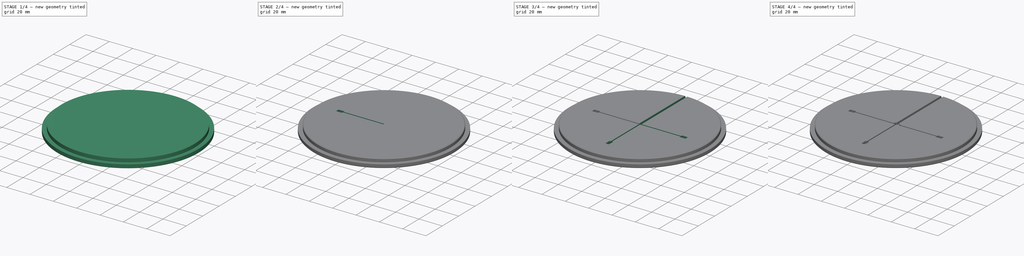
[diagram: build sequence overview — one tinted view per stage of 4, left to right]
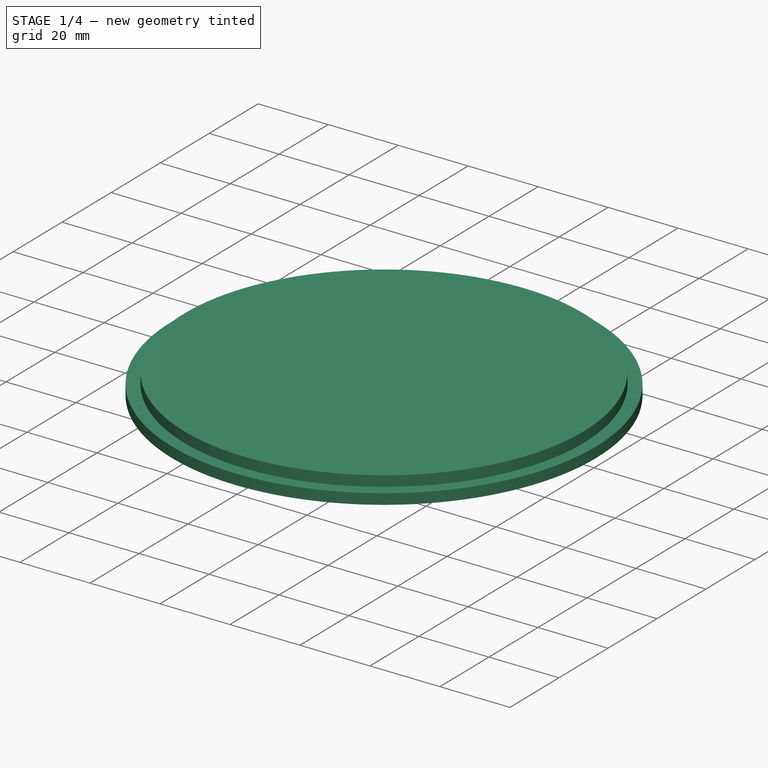
[diagram: stage 1 of 4 — iso view after this stage's code; geometry added in this stage tinted green]
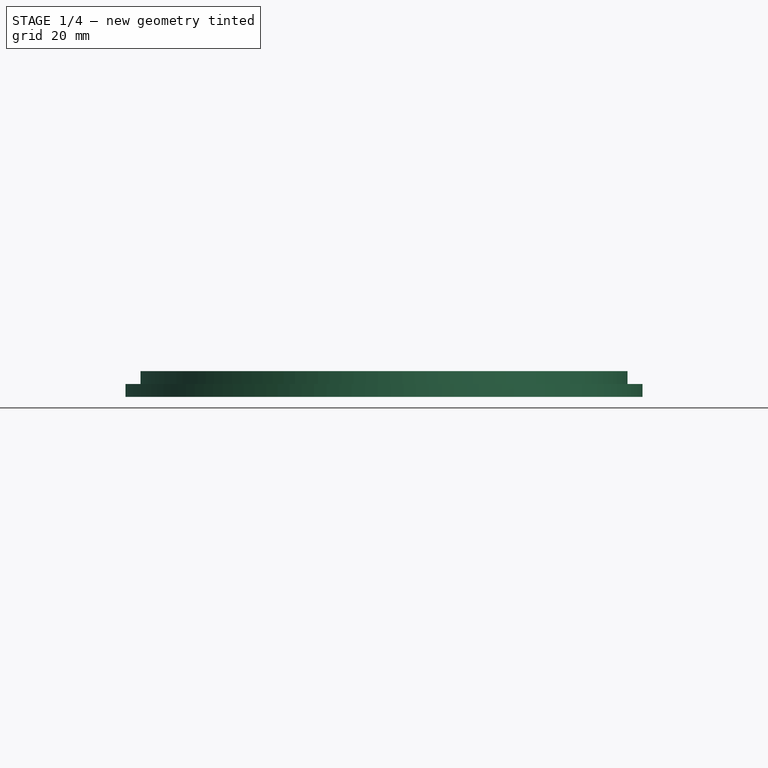
[diagram: stage 1 of 4 — front view after this stage's code; geometry added in this stage tinted green]
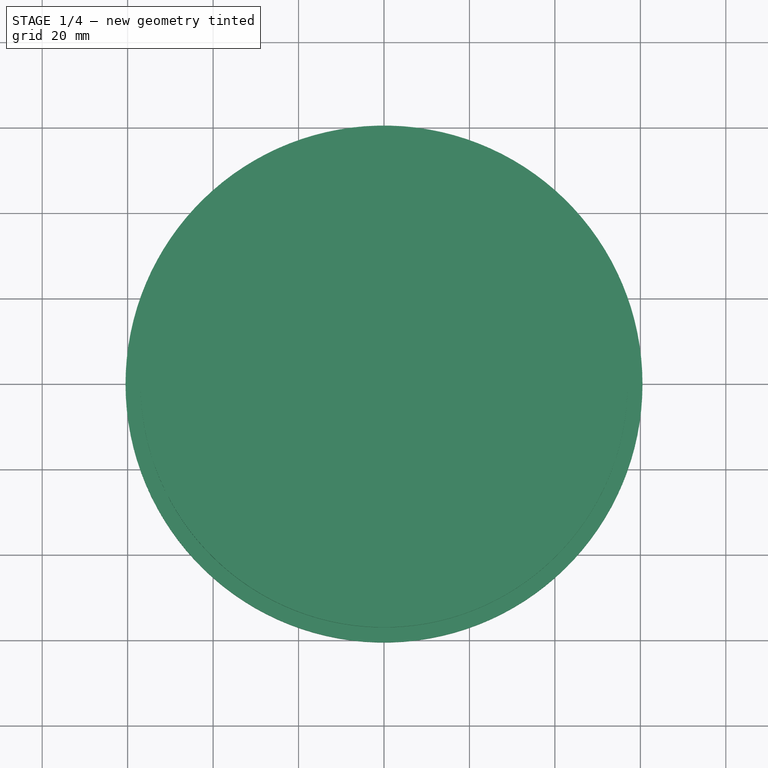
[diagram: stage 1 of 4 — top view after this stage's code; geometry added in this stage tinted green]
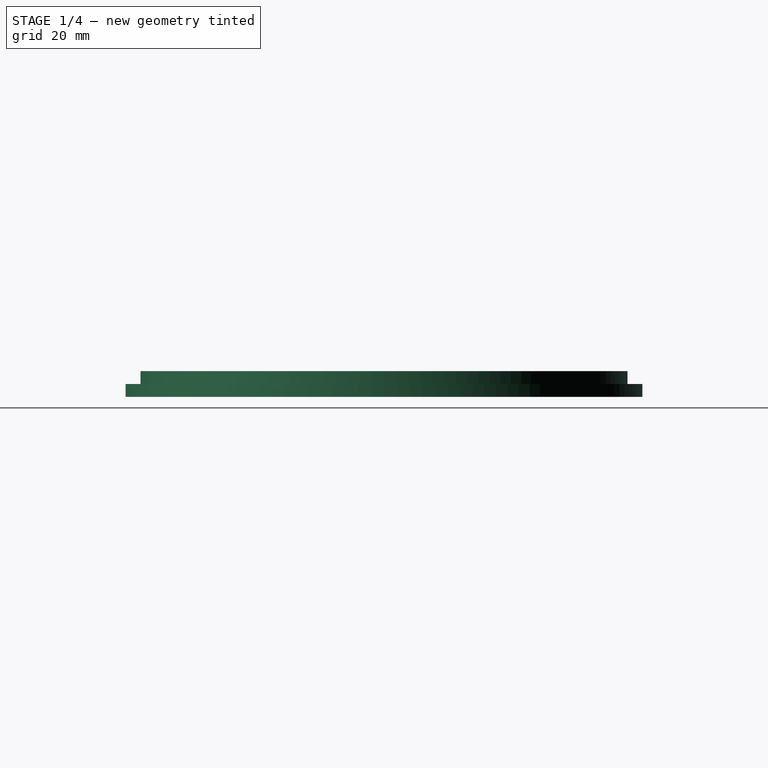
[diagram: stage 1 of 4 — right view after this stage's code; geometry added in this stage tinted green]
FCSTD DOCUMENT  (FreeCAD 0.19R24291 (Git))
Label: Top
License: All rights reserved
LicenseURL: http://en.wikipedia.org/wiki/All_rights_reserved
objects: Sketcher::SketchObject×5, PartDesign::Pocket×3, PartDesign::Pad×2, PartDesign::Chamfer×2, PartDesign::Fillet×2, PartDesign::PolarPattern×1, PartDesign::Body×1
note: 25 computed .brp shape members not serialized (recipe doc carries the construction recipe); baked Part::Feature solids carry a one-line shape summary decoded from their .brp

FEATURE [Sketcher::SketchObject] Sketch
  FullyConstrained = true
  MapMode = 5
  Support = -> [XY_Plane]
  sketch-geometry (1):
    g0: Circle CenterX=0 CenterY=0 CenterZ=0 NormalX=0 NormalY=0 NormalZ=1 AngleXU=0 Radius=57
  constraints (2):
    c: Coincident(g0,g-1)
    c: Diameter(g0) = 114
FEATURE [PartDesign::Pad] Pad  label="Innencylinder"
  Direction = (1,1,1)
  Length = 3
  Length2 = 100
  Profile = -> Sketch
  Type = 0
FEATURE [Sketcher::SketchObject] Sketch001
  FullyConstrained = true
  MapMode = 5
  Placement = pos=(0,0,0) rot=(1,0,0;3.14159rad)
  Support = -> [Pad]
  sketch-geometry (1):
    g0: Circle CenterX=0 CenterY=0 CenterZ=0 NormalX=0 NormalY=0 NormalZ=1 AngleXU=0 Radius=60.5
  constraints (2):
    c: Coincident(g0,g-1)
    c: Diameter(g0) = 121
FEATURE [PartDesign::Pad] Pad001  label="Fuss"
  BaseFeature = -> Pad
  Direction = (1,1,1)
  Length = 3
  Length2 = 100
  Profile = -> Sketch001
  Type = 0
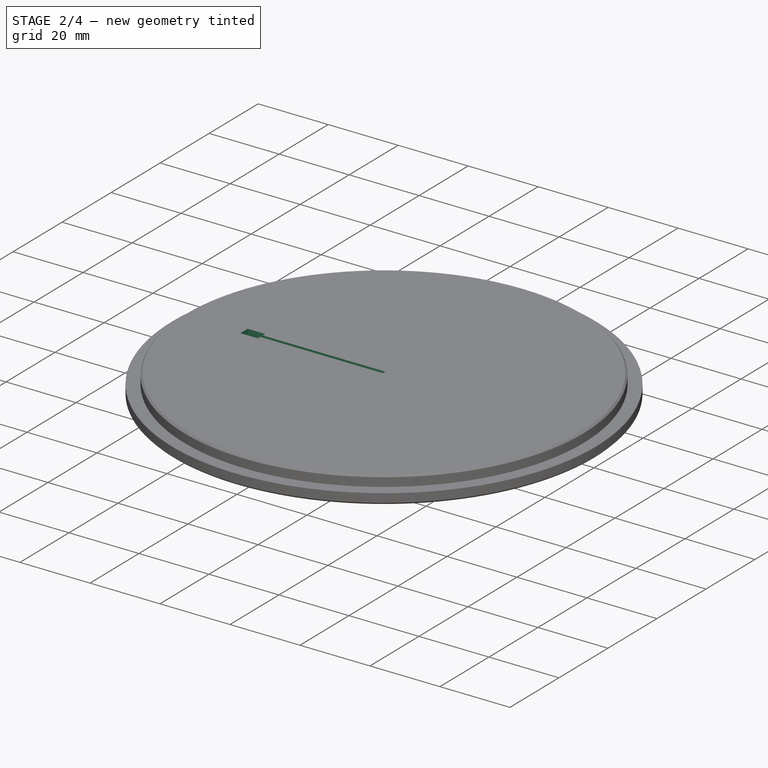
[diagram: stage 2 of 4 — iso view after this stage's code; geometry added in this stage tinted green]
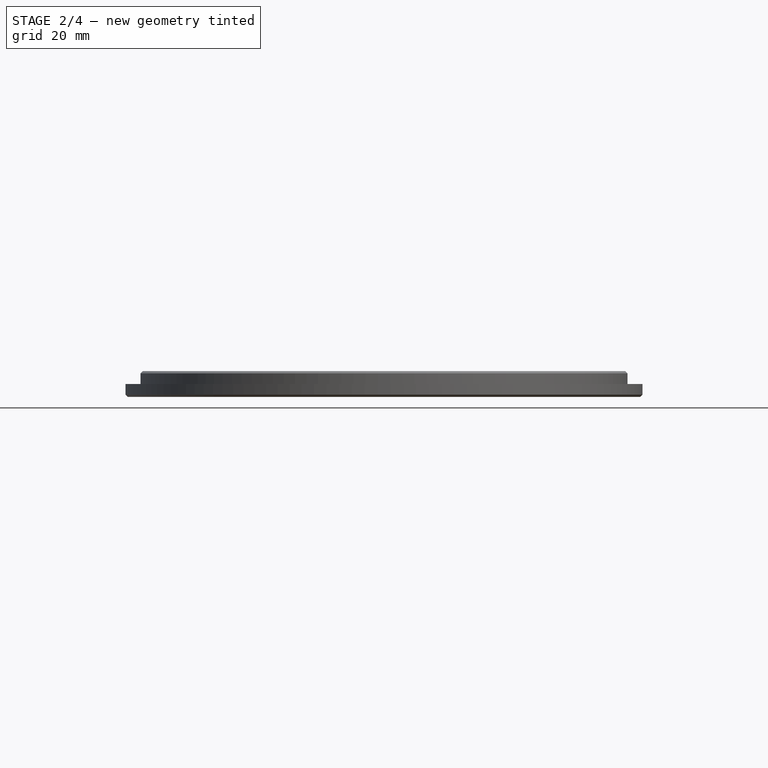
[diagram: stage 2 of 4 — front view after this stage's code; geometry added in this stage tinted green]
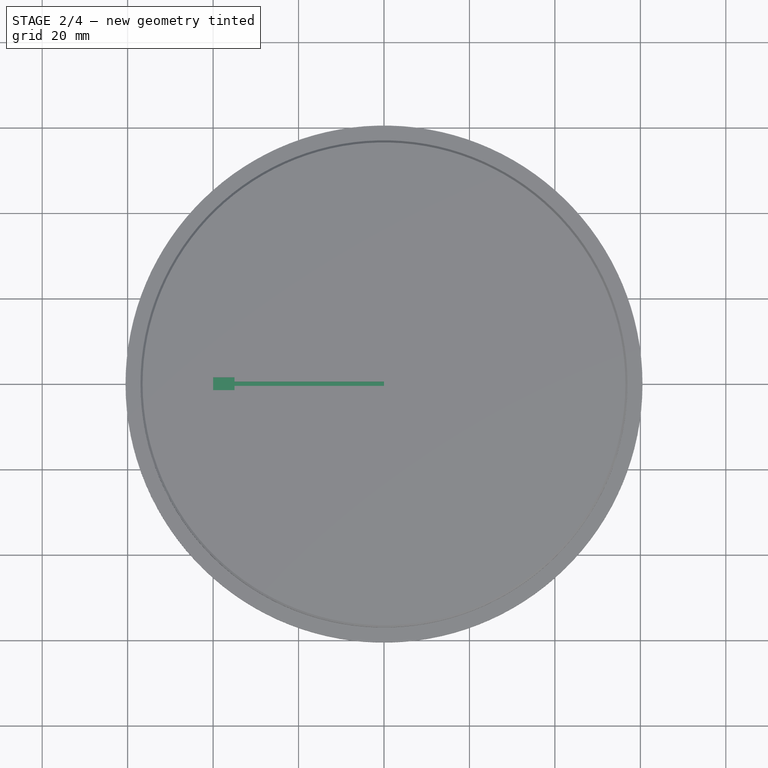
[diagram: stage 2 of 4 — top view after this stage's code; geometry added in this stage tinted green]
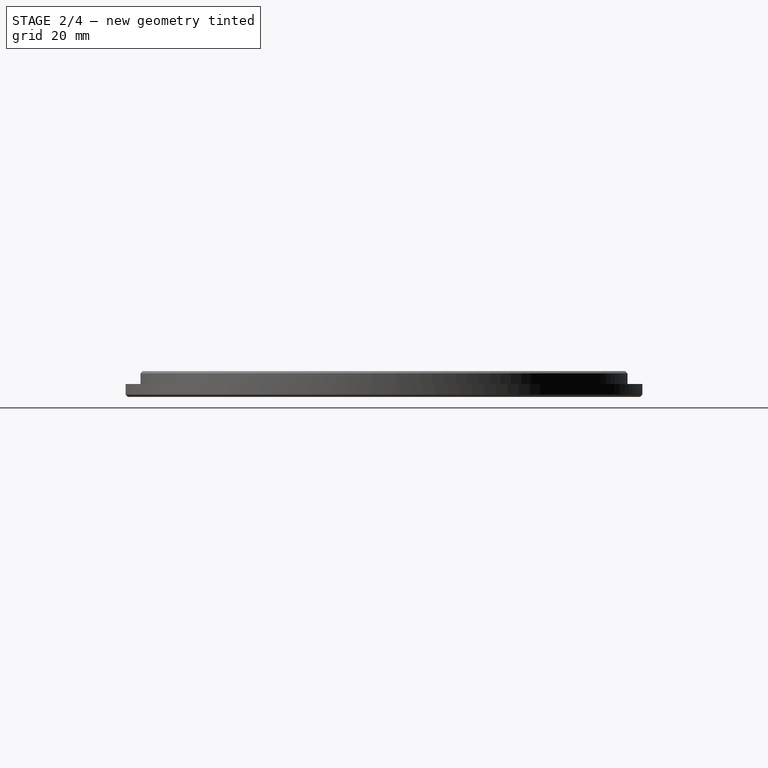
[diagram: stage 2 of 4 — right view after this stage's code; geometry added in this stage tinted green]
FEATURE [PartDesign::Chamfer] Chamfer
  Angle = 45
  Base = -> Pad001 [Edge6]
  BaseFeature = -> Pad001
  ChamferType = 0
  FlipDirection = false
  Size = 0.5
  Size2 = 1
  SupportTransform = false
FEATURE [PartDesign::Chamfer] Chamfer001
  Angle = 45
  Base = -> Chamfer [Edge8]
  BaseFeature = -> Chamfer
  ChamferType = 0
  FlipDirection = false
  Size = 0.5
  Size2 = 1
  SupportTransform = false
FEATURE [Sketcher::SketchObject] Sketch002
  FullyConstrained = true
  MapMode = 5
  Placement = pos=(0,0,3) rot=(0,0,1;0rad)
  Support = -> [Chamfer001]
  sketch-geometry (8):
    g0: LineSegment StartX=-40 StartY=-1.5 StartZ=0 EndX=-40 EndY=1.5 EndZ=0
    g1: LineSegment StartX=-40 StartY=1.5 StartZ=0 EndX=-35 EndY=1.5 EndZ=0
    g2: LineSegment StartX=-35 StartY=0.5 StartZ=0 EndX=-35 EndY=1.5 EndZ=0
    g3: LineSegment StartX=-35 StartY=0.5 StartZ=0 EndX=0 EndY=0.5 EndZ=0
    g4: LineSegment StartX=0 StartY=0.5 StartZ=0 EndX=0 EndY=-0.5 EndZ=0
    g5: LineSegment StartX=0 StartY=-0.5 StartZ=0 EndX=-35 EndY=-0.5 EndZ=0
    g6: LineSegment StartX=-35 StartY=-0.5 StartZ=0 EndX=-35 EndY=-1.5 EndZ=0
    g7: LineSegment StartX=-35 StartY=-1.5 StartZ=0 EndX=-40 EndY=-1.5 EndZ=0
  constraints (23):
    c: Coincident(g1,g0)
    c: Horizontal(g1)
    c: Coincident(g2,g1)
    c: Vertical(g2)
    c: Coincident(g3,g2)
    c: Horizontal(g3)
    c: Coincident(g4,g3)
    c: Vertical(g4)
    c: Coincident(g5,g4)
    c: Horizontal(g5)
    c: Coincident(g6,g5)
    c: Coincident(g7,g6)
    c: Coincident(g7,g0)
    c: Horizontal(g7)
    c: Symmetric(g3,g4,g-1)
    c: DistanceY(g4,g4) = 1
    c: DistanceX(g3,g3) = 35
    c: Equal(g5,g3)
    c: Vertical(g6)
    c: Vertical(g0)
    c: Equal(g2,g6)
    c: DistanceX(g1,g1) = 5
    c: DistanceY(g0,g0) = 3
FEATURE [PartDesign::Pocket] Pocket  label="LED Ausbruch"
  BaseFeature = -> Chamfer001
  Length = 2
  Length2 = 100
  Profile = -> Sketch002
  Type = 0
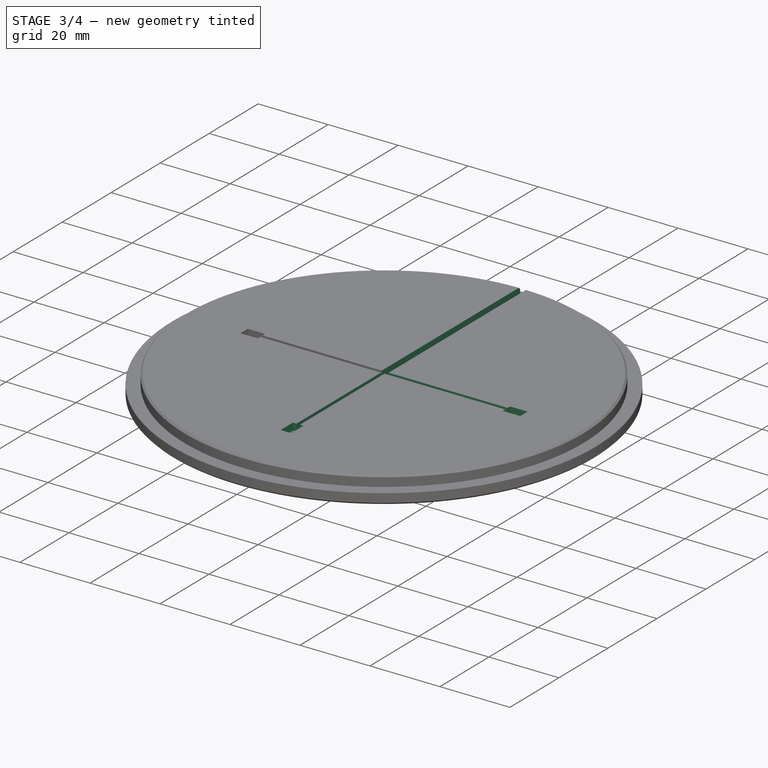
[diagram: stage 3 of 4 — iso view after this stage's code; geometry added in this stage tinted green]
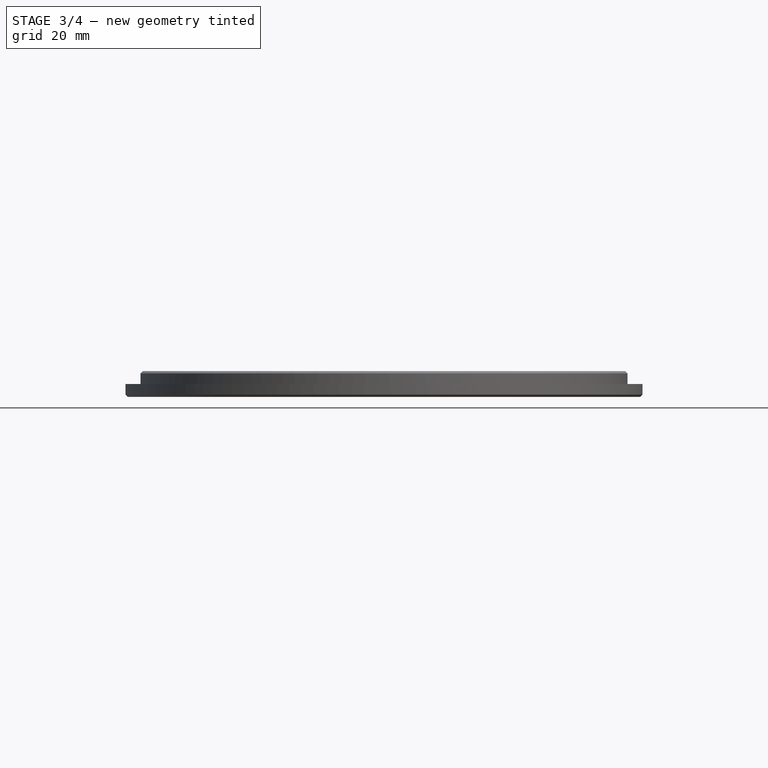
[diagram: stage 3 of 4 — front view after this stage's code; geometry added in this stage tinted green]
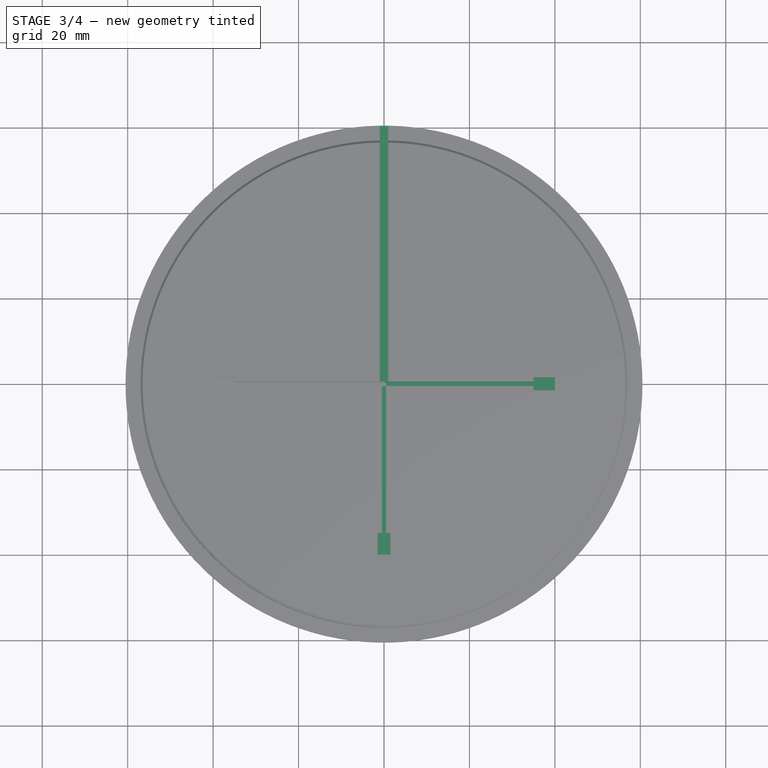
[diagram: stage 3 of 4 — top view after this stage's code; geometry added in this stage tinted green]
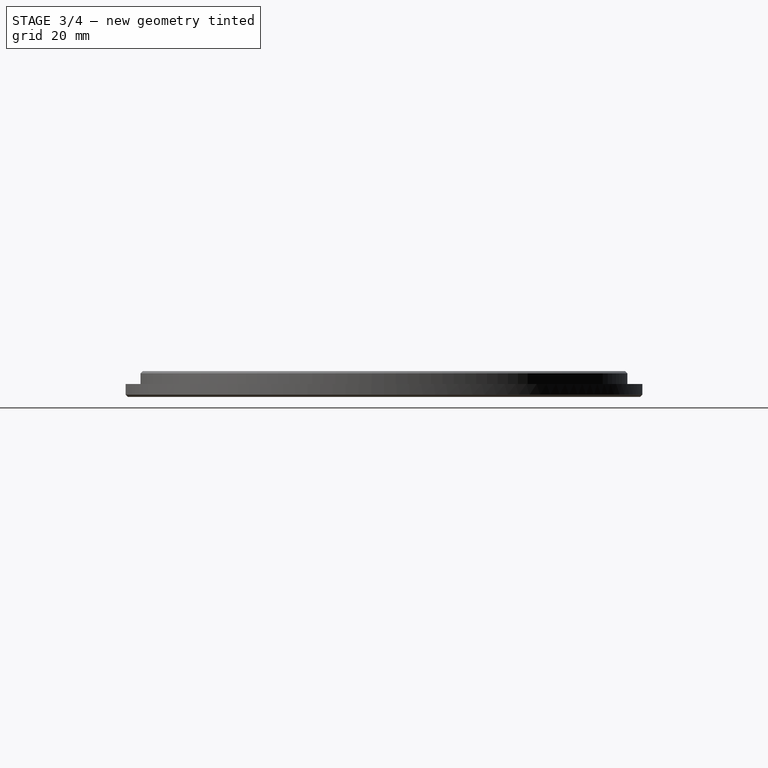
[diagram: stage 3 of 4 — right view after this stage's code; geometry added in this stage tinted green]
FEATURE [PartDesign::PolarPattern] PolarPattern
  Angle = 180
  Axis = -> Sketch002 [N_Axis]
  BaseFeature = -> Pocket
  Occurrences = 3
  Originals = -> [Pocket]
FEATURE [Sketcher::SketchObject] Sketch003
  ExternalGeometry = -> [PolarPattern]
  FullyConstrained = true
  MapMode = 5
  Placement = pos=(0,0,3) rot=(0,0,1;0rad)
  Support = -> [PolarPattern]
  sketch-geometry (4):
    g0: LineSegment StartX=-1 StartY=-1e-15 StartZ=0 EndX=-1 EndY=60.5 EndZ=0
    g1: LineSegment StartX=-1 StartY=60.5 StartZ=0 EndX=1 EndY=60.5 EndZ=0
    g2: LineSegment StartX=1 StartY=60.5 StartZ=0 EndX=1 EndY=0 EndZ=0
    g3: LineSegment StartX=-1 StartY=-1e-15 StartZ=0 EndX=1 EndY=0 EndZ=0
  constraints (11):
    c: Vertical(g0)
    c: Coincident(g1,g0)
    c: Horizontal(g1)
    c: Coincident(g2,g1)
    c: Vertical(g2)
    c: Equal(g2,g0)
    c: Tangent(g1,g-3)
    c: DistanceX(g1,g1) = 2
    c: Coincident(g3,g0)
    c: Coincident(g3,g2)
    c: Symmetric(g0,g2,g-1)
FEATURE [PartDesign::Pocket] Pocket001
  BaseFeature = -> PolarPattern
  Length = 2
  Length2 = 1
  Profile = -> Sketch003
  Type = 0
FEATURE [Sketcher::SketchObject] Sketch004
  ExternalGeometry = -> [Pocket001]
  FullyConstrained = true
  MapMode = 5
  Placement = pos=(0,0,1) rot=(0,0,1;0rad)
  Support = -> [Pocket001]
  sketch-geometry (4):
    g0: LineSegment StartX=-1 StartY=55.5 StartZ=0 EndX=1 EndY=55.5 EndZ=0
    g1: LineSegment StartX=1 StartY=55.5 StartZ=0 EndX=1 EndY=60.5 EndZ=0
    g2: LineSegment StartX=1 StartY=60.5 StartZ=0 EndX=-1 EndY=60.5 EndZ=0
    g3: LineSegment StartX=-1 StartY=60.5 StartZ=0 EndX=-1 EndY=55.5 EndZ=0
  constraints (11):
    c: Coincident(g0,g1)
    c: Coincident(g1,g2)
    c: Coincident(g2,g3)
    c: Coincident(g3,g0)
    c: Vertical(g1)
    c: Vertical(g3)
    c: Tangent(g2,g-3)
    c: DistanceY(g3,g3) = 5
    c: Horizontal(g0)
    c: Symmetric(g2,g1,g-2)
    c: DistanceX(g2,g2) = 2
FEATURE [PartDesign::Pocket] Pocket002
  BaseFeature = -> Pocket001
  Length = 2
  Length2 = 100
  Profile = -> Sketch004
  Type = 0
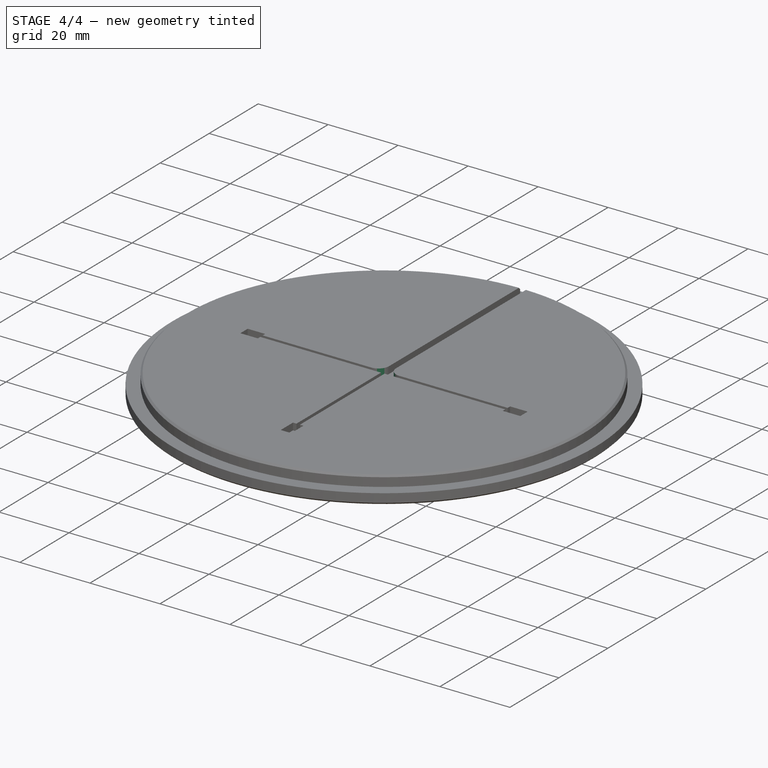
[diagram: stage 4 of 4 — iso view after this stage's code; geometry added in this stage tinted green]
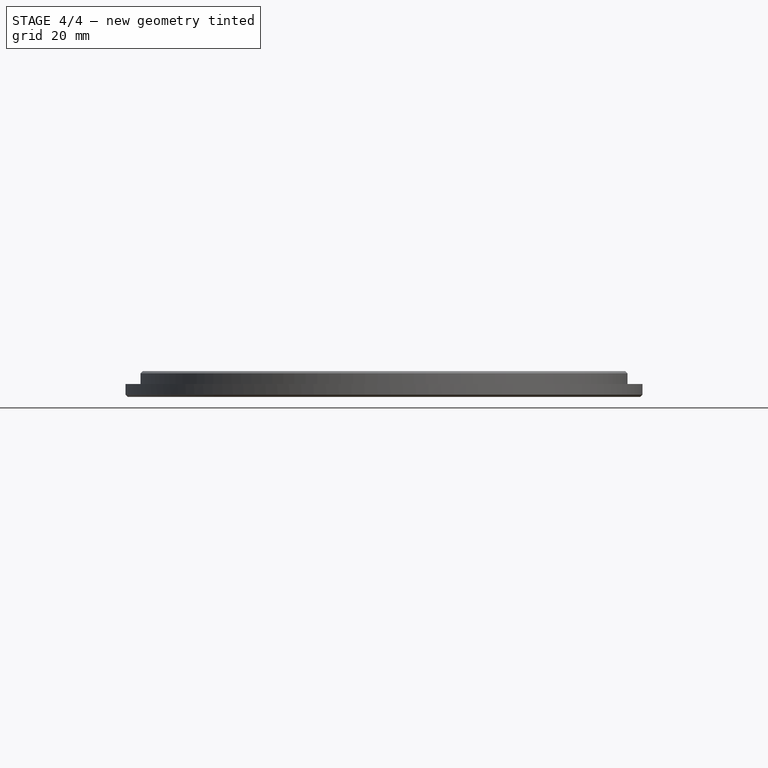
[diagram: stage 4 of 4 — front view after this stage's code; geometry added in this stage tinted green]
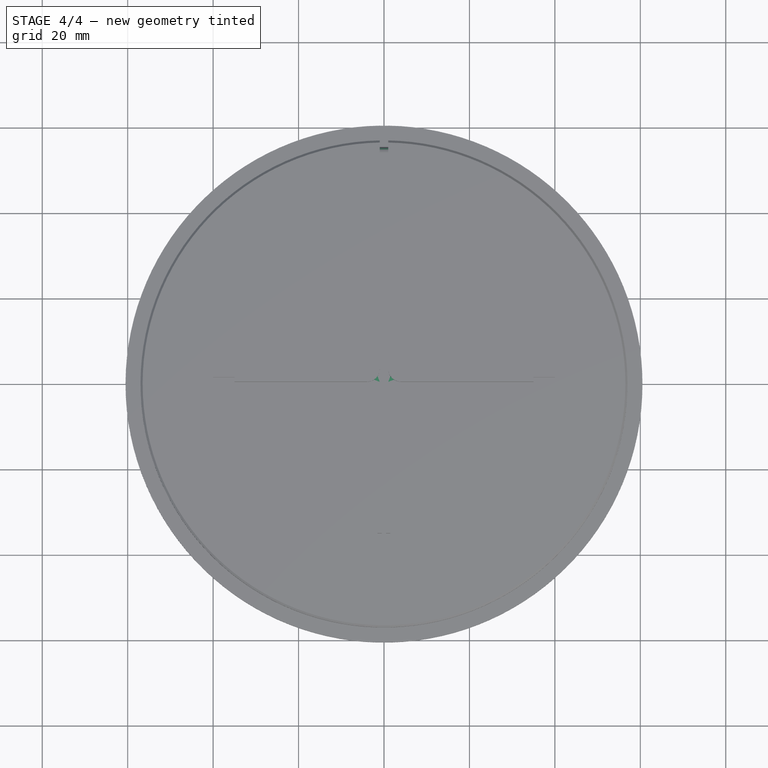
[diagram: stage 4 of 4 — top view after this stage's code; geometry added in this stage tinted green]
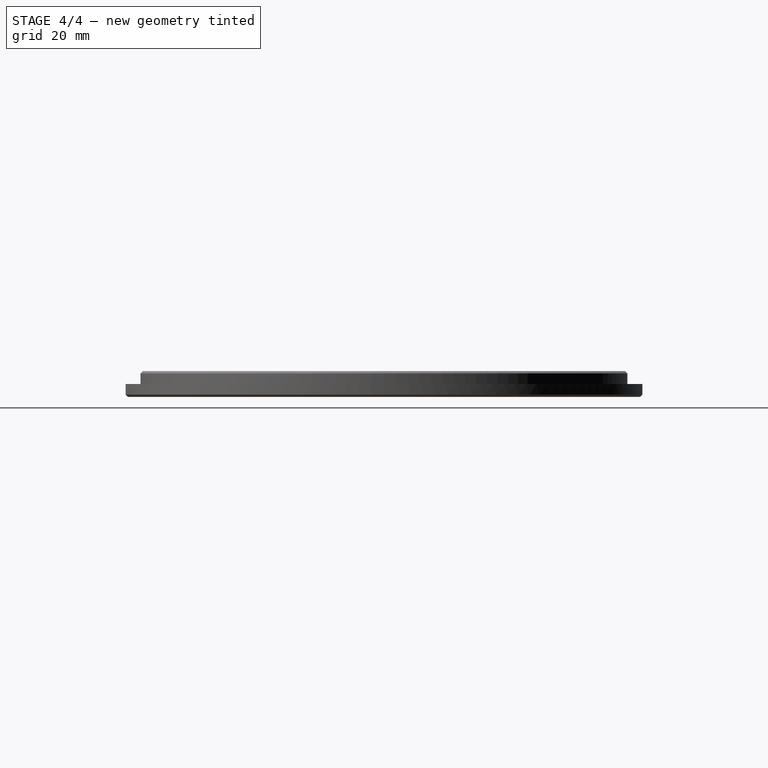
[diagram: stage 4 of 4 — right view after this stage's code; geometry added in this stage tinted green]
FEATURE [PartDesign::Fillet] Fillet
  Base = -> Pocket002 [Edge35,Edge32]
  BaseFeature = -> Pocket002
  Radius = 3
  SupportTransform = false
FEATURE [PartDesign::Fillet] Fillet001
  Base = -> Fillet [Edge39]
  BaseFeature = -> Fillet
  Radius = 1.5
  SupportTransform = false
FEATURE [PartDesign::Body] Body
  Group = -> [Sketch,Pad,Sketch001,Pad001,Chamfer,Chamfer001,Sketch002,Pocket,PolarPattern,Sketch003,Pocket001,Sketch004,Pocket002,Fillet,Fillet001]
  Origin = -> Origin
  Tip = -> Fillet001
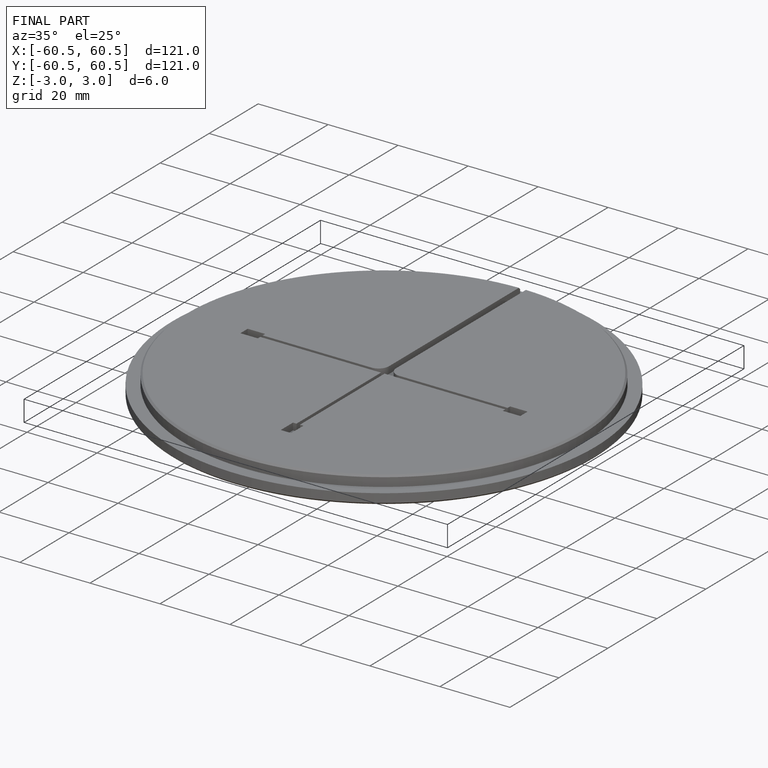
[diagram: finished part — iso view with bounding-box wireframe]
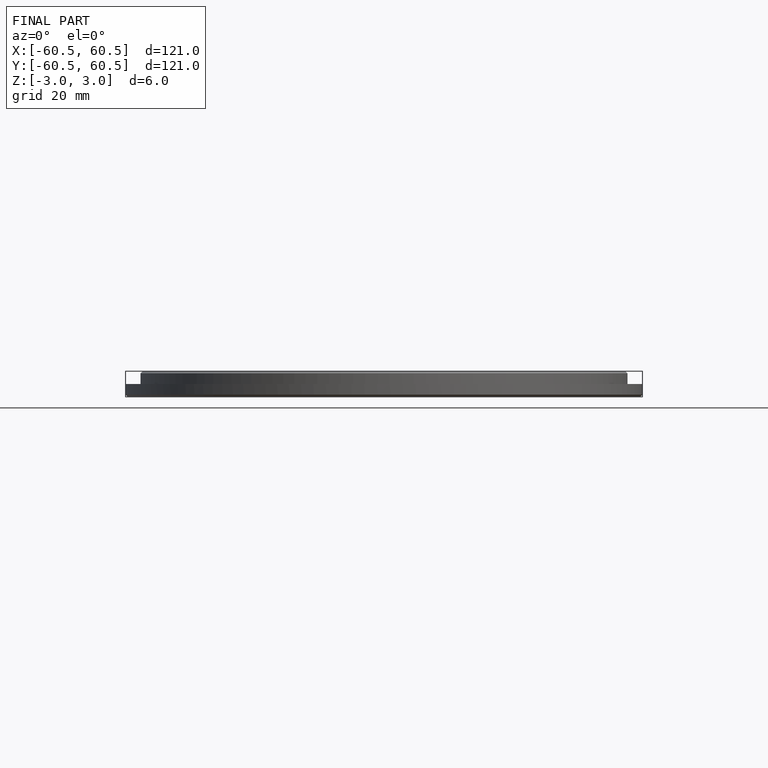
[diagram: finished part — front view with bounding-box wireframe]
